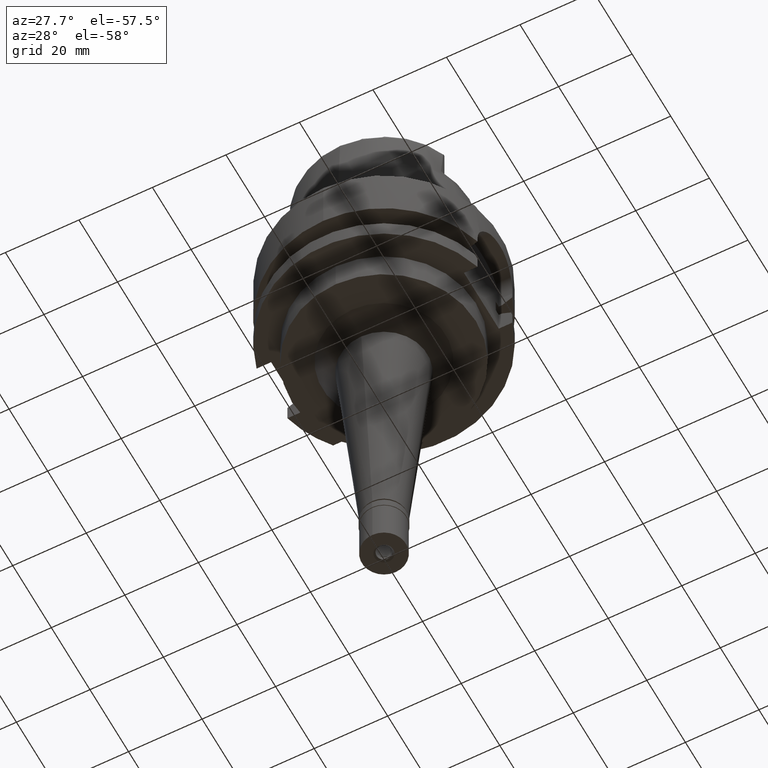
[diagram: clean part render]
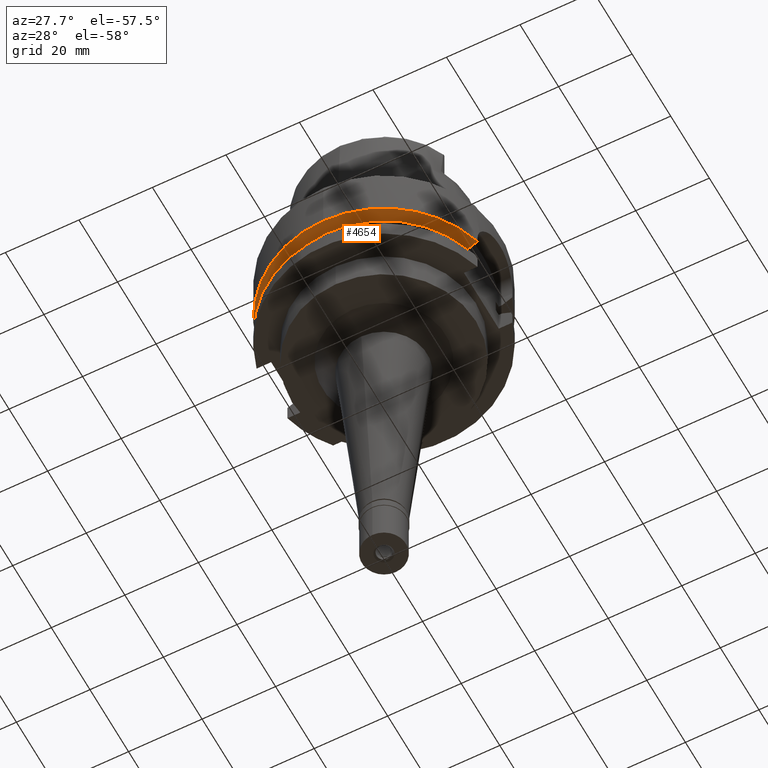
[diagram: same view with one face highlighted and labeled with its STEP entity id]
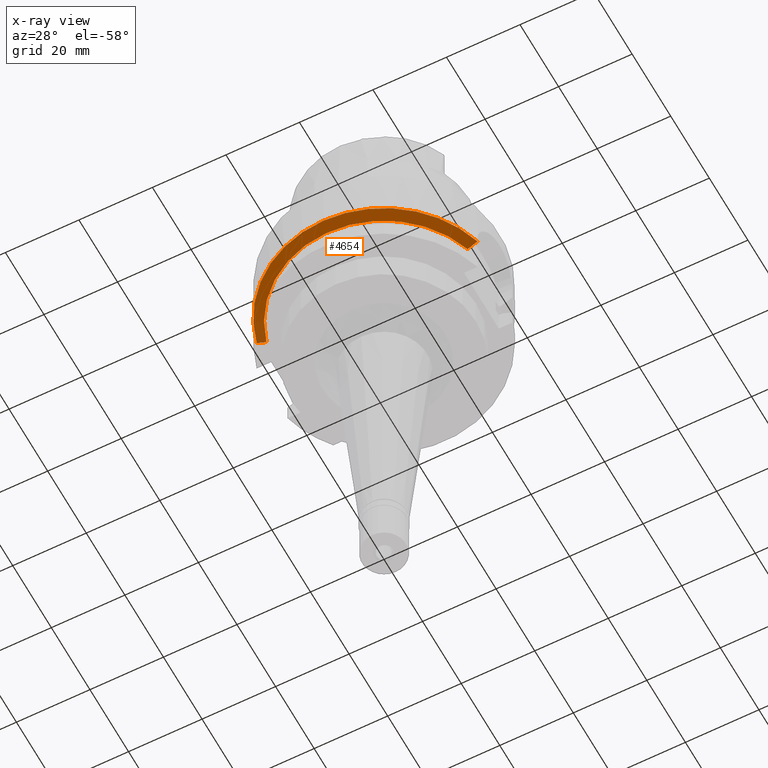
[diagram: x-ray of the same camera — body ghosted, the highlighted face saturated]
A machine part, auxiliary view. The second image highlights one B-rep face of the part: STEP entity #4654.
The next image is the same camera in x-ray: the body ghosted, the highlighted face saturated — about 0% of this face is hidden behind the body in this view.
In plain terms, the highlighted conical surface has half-angle 60 deg.
Its self-contained STEP definition (entity closure, byte-faithful):
#100 = CARTESIAN_POINT ( 'NONE',  ( 27.46035048411999924, -9.000000214616999727, -16.12500000000000000 ) ) ;
#261 = B_SPLINE_CURVE_WITH_KNOTS ( 'NONE', 3,
 ( #100, #4004, #1395, #1335 ),
 .UNSPECIFIED., .F., .F.,
 ( 4, 4 ),
 ( 0.0000000000000000000, 1.000000000000000000 ),
 .UNSPECIFIED. ) ;
#286 = VERTEX_POINT ( 'NONE', #4364 ) ;
#336 = DIRECTION ( 'NONE',  ( 0.0000000000000000000, -1.000000000000000000, 0.0000000000000000000 ) ) ;
#404 = VERTEX_POINT ( 'NONE', #1311 ) ;
#466 = DIRECTION ( 'NONE',  ( 0.0000000000000000000, -1.000000000000000000, 0.0000000000000000000 ) ) ;
#635 = AXIS2_PLACEMENT_3D ( 'NONE', #1182, #2462, #2910 ) ;
#651 = CARTESIAN_POINT ( 'NONE',  ( -30.46719547317000121, -8.000000000001000089, -14.62250092523999889 ) ) ;
#1177 = CIRCLE ( 'NONE', #5372, 31.50000000000000000 ) ;
#1182 = CARTESIAN_POINT ( 'NONE',  ( 0.0000000000000000000, 1.036372656197999898E-14, -15.37375046262000033 ) ) ;
#1238 = CONICAL_SURFACE ( 'NONE', #635, 30.19879763209999979, 1.047197551196400456 ) ;
#1311 = CARTESIAN_POINT ( 'NONE',  ( 0.0000000000000000000, -31.50000000000000000, -14.62250092523999889 ) ) ;
#1335 = CARTESIAN_POINT ( 'NONE',  ( 30.18691748978999811, -9.000000692472998054, -14.62249533990000039 ) ) ;
#1395 = CARTESIAN_POINT ( 'NONE',  ( 29.24010114858126030, -9.000001384362802170, -15.14635851058829630 ) ) ;
#1515 = CARTESIAN_POINT ( 'NONE',  ( 0.0000000000000000000, 1.036372656197999898E-14, -14.62250092523999889 ) ) ;
#1562 = ORIENTED_EDGE ( 'NONE', *, *, #3439, .F. ) ;
#1603 = DIRECTION ( 'NONE',  ( -0.9672125547036138915, -0.2539682539683034701, 0.0000000000000000000 ) ) ;
#1664 = CARTESIAN_POINT ( 'NONE',  ( 30.18691748978999811, -9.000000692472998054, -14.62249533990000039 ) ) ;
#1681 = VERTEX_POINT ( 'NONE', #651 ) ;
#1692 = ORIENTED_EDGE ( 'NONE', *, *, #4722, .T. ) ;
#1838 = VERTEX_POINT ( 'NONE', #1664 ) ;
#1964 = DIRECTION ( 'NONE',  ( 0.0000000000000000000, 0.0000000000000000000, 1.000000000000000000 ) ) ;
#2263 = B_SPLINE_CURVE_WITH_KNOTS ( 'NONE', 3,
 ( #4145, #3680, #3266, #3314 ),
 .UNSPECIFIED., .F., .F.,
 ( 4, 4 ),
 ( 0.0000000000000000000, 1.000000000000000000 ),
 .UNSPECIFIED. ) ;
#2270 = CARTESIAN_POINT ( 'NONE',  ( -27.76817309204000139, -7.999999501235999233, -16.12500000000000000 ) ) ;
#2462 = DIRECTION ( 'NONE',  ( 0.0000000000000000000, 0.0000000000000000000, 1.000000000000000000 ) ) ;
#2537 = CARTESIAN_POINT ( 'NONE',  ( 0.0000000000000000000, 1.036372656197999898E-14, -14.62250092523999889 ) ) ;
#2910 = DIRECTION ( 'NONE',  ( 0.0000000000000000000, 1.000000000000000000, 0.0000000000000000000 ) ) ;
#3266 = CARTESIAN_POINT ( 'NONE',  ( -28.63001415309240016, -7.999999001477867466, -15.64685924923584714 ) ) ;
#3314 = CARTESIAN_POINT ( 'NONE',  ( -27.76817309204000139, -7.999999501235999233, -16.12500000000000000 ) ) ;
#3408 = ORIENTED_EDGE ( 'NONE', *, *, #4662, .T. ) ;
#3439 = EDGE_CURVE ( 'NONE', #404, #1838, #1177, .T. ) ;
#3680 = CARTESIAN_POINT ( 'NONE',  ( -29.52968251929516796, -7.999999801105271757, -15.14602734058065359 ) ) ;
#3742 = DIRECTION ( 'NONE',  ( 0.0000000000000000000, 0.0000000000000000000, 1.000000000000000000 ) ) ;
#3813 = EDGE_CURVE ( 'NONE', #1681, #404, #4851, .T. ) ;
#3839 = EDGE_CURVE ( 'NONE', #1681, #5316, #2263, .T. ) ;
#4004 = CARTESIAN_POINT ( 'NONE',  ( 28.33125527767816720, -9.000000429795958823, -15.64719239923609706 ) ) ;
#4145 = CARTESIAN_POINT ( 'NONE',  ( -30.46719547317000121, -8.000000000001000089, -14.62250092523999889 ) ) ;
#4152 = FACE_OUTER_BOUND ( 'NONE', #4218, .T. ) ;
#4218 = EDGE_LOOP ( 'NONE', ( #4853, #3408, #1692, #1562, #5174 ) ) ;
#4228 = DIRECTION ( 'NONE',  ( 0.0000000000000000000, 0.0000000000000000000, 1.000000000000000000 ) ) ;
#4305 = AXIS2_PLACEMENT_3D ( 'NONE', #1515, #1964, #1603 ) ;
#4364 = CARTESIAN_POINT ( 'NONE',  ( 27.46035048411999924, -9.000000214616999727, -16.12500000000000000 ) ) ;
#4550 = AXIS2_PLACEMENT_3D ( 'NONE', #4595, #3742, #336 ) ;
#4595 = CARTESIAN_POINT ( 'NONE',  ( 0.0000000000000000000, 1.036372656197999898E-14, -16.12500000000000000 ) ) ;
#4654 = ADVANCED_FACE ( 'NONE', ( #4152 ), #1238, .T. ) ;
#4662 = EDGE_CURVE ( 'NONE', #5316, #286, #4911, .T. ) ;
#4722 = EDGE_CURVE ( 'NONE', #286, #1838, #261, .T. ) ;
#4851 = CIRCLE ( 'NONE', #4305, 31.50000000000000000 ) ;
#4853 = ORIENTED_EDGE ( 'NONE', *, *, #3839, .T. ) ;
#4911 = CIRCLE ( 'NONE', #4550, 28.89759526419000224 ) ;
#5174 = ORIENTED_EDGE ( 'NONE', *, *, #3813, .F. ) ;
#5316 = VERTEX_POINT ( 'NONE', #2270 ) ;
#5372 = AXIS2_PLACEMENT_3D ( 'NONE', #2537, #4228, #466 ) ;